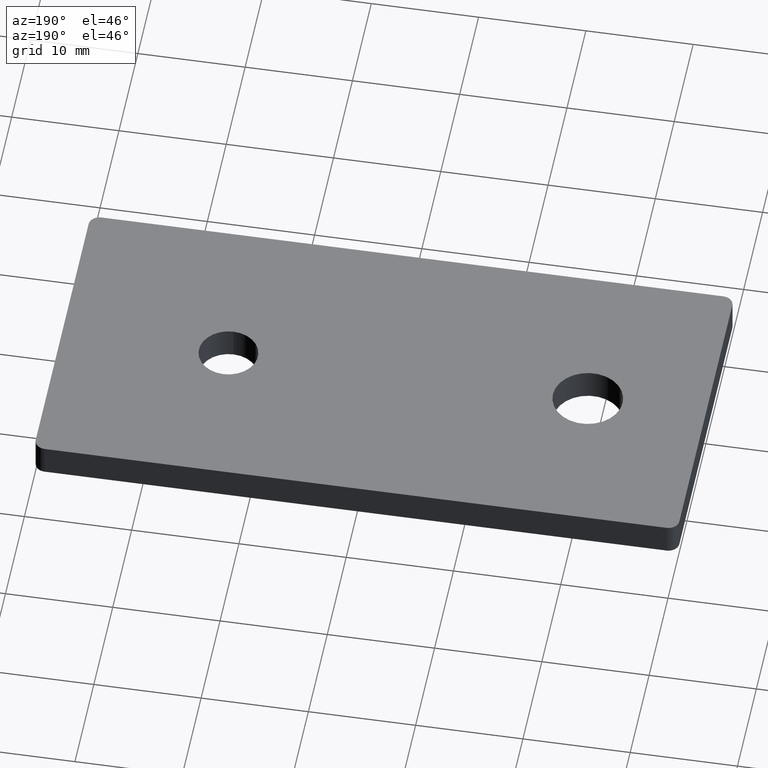
[diagram: clean part render]
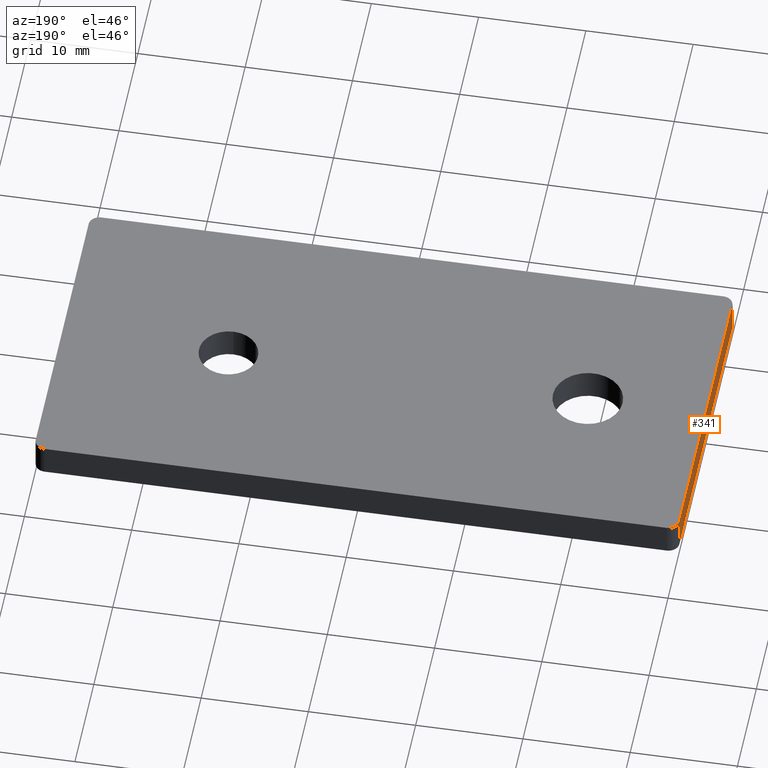
[diagram: same view with one face highlighted and labeled with its STEP entity id]
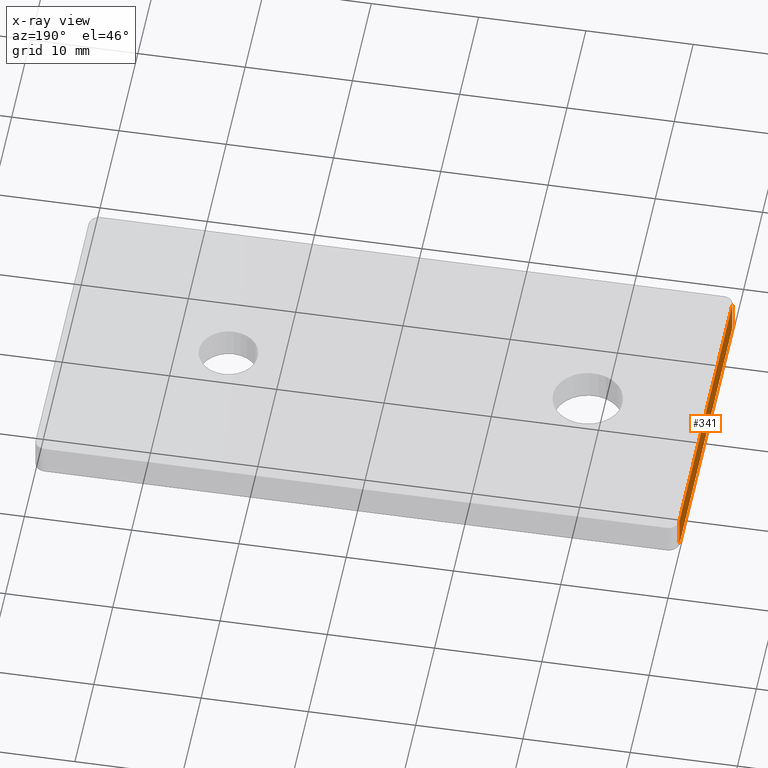
[diagram: x-ray of the same camera — body ghosted, the highlighted face saturated]
A machine part, auxiliary view. The second image highlights one B-rep face of the part: STEP entity #341.
The next image is the same camera in x-ray: the body ghosted, the highlighted face saturated — about 0% of this face is hidden behind the body in this view.
In plain terms, the highlighted planar face has unit normal (1, 0, 0).
Its self-contained STEP definition (entity closure, byte-faithful):
#91=CARTESIAN_POINT('',(-60.0,-13.999999999999993,0.0));
#92=VERTEX_POINT('',#91);
#110=CARTESIAN_POINT('',(-60.0,-13.999999999999993,3.0));
#111=VERTEX_POINT('',#110);
#119=CARTESIAN_POINT('',(-60.0,-13.999999999999993,3.0));
#120=DIRECTION('',(0.0,0.0,-1.0));
#121=VECTOR('',#120,3.0);
#122=LINE('',#119,#121);
#123=EDGE_CURVE('',#111,#92,#122,.T.);
#292=CARTESIAN_POINT('',(-60.0,13.999999999999998,0.0));
#293=VERTEX_POINT('',#292);
#301=CARTESIAN_POINT('',(-60.0,13.999999999999998,3.0));
#302=VERTEX_POINT('',#301);
#303=CARTESIAN_POINT('',(-60.0,13.999999999999998,3.0));
#304=DIRECTION('',(0.0,0.0,-1.0));
#305=VECTOR('',#304,3.0);
#306=LINE('',#303,#305);
#307=EDGE_CURVE('',#302,#293,#306,.T.);
#320=CARTESIAN_POINT('',(-60.0,-15.399999999999991,3.150000000000000));
#321=DIRECTION('',(1.0,0.0,0.0));
#322=DIRECTION('',(0.0,0.0,-1.0));
#323=AXIS2_PLACEMENT_3D('',#320,#321,#322);
#324=PLANE('',#323);
#325=CARTESIAN_POINT('',(-60.0,13.999999999999998,0.0));
#326=DIRECTION('',(0.0,-1.0,0.0));
#327=VECTOR('',#326,27.999999999999993);
#328=LINE('',#325,#327);
#329=EDGE_CURVE('',#293,#92,#328,.T.);
#330=ORIENTED_EDGE('',*,*,#329,.T.);
#331=ORIENTED_EDGE('',*,*,#123,.F.);
#332=CARTESIAN_POINT('',(-60.0,13.999999999999998,3.0));
#333=DIRECTION('',(0.0,-1.0,0.0));
#334=VECTOR('',#333,27.999999999999993);
#335=LINE('',#332,#334);
#336=EDGE_CURVE('',#302,#111,#335,.T.);
#337=ORIENTED_EDGE('',*,*,#336,.F.);
#338=ORIENTED_EDGE('',*,*,#307,.T.);
#339=EDGE_LOOP('',(#330,#331,#337,#338));
#340=FACE_OUTER_BOUND('',#339,.T.);
#341=ADVANCED_FACE('',(#340),#324,.F.);